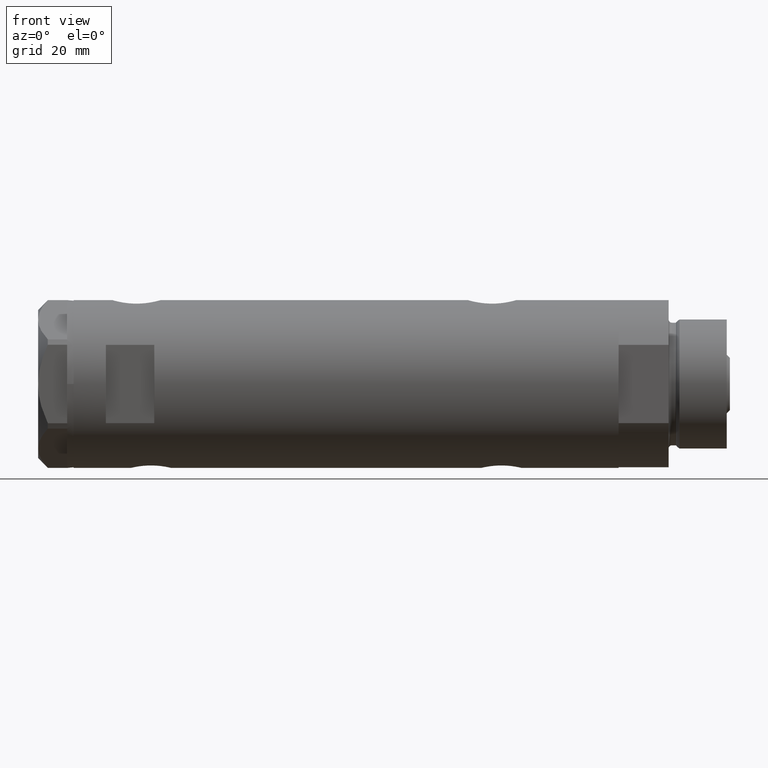
[diagram: clean part render]
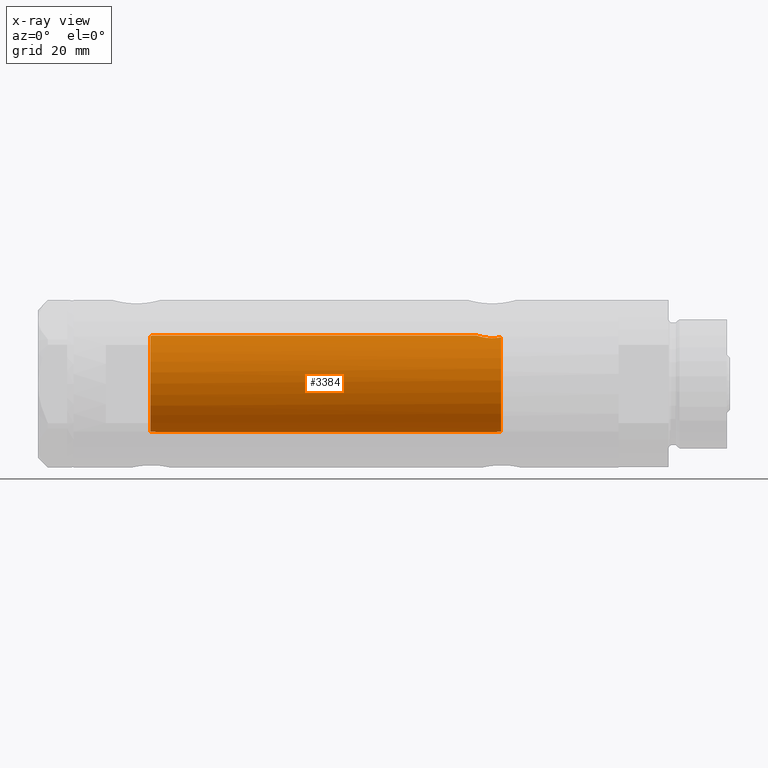
[diagram: x-ray — body ghosted, one internal face saturated and labeled with its STEP entity id]
A machine part, front view, then the same camera in x-ray: the body is ghosted and one INTERNAL B-rep face — a face not visible from any outside direction — is saturated and labeled: STEP entity #3384.
In plain terms, the highlighted cylindrical surface (partial cylindrical patch) has radius 15 mm, axis along (1, 0, -0).
Its self-contained STEP definition (entity closure, byte-faithful):
#14 = CARTESIAN_POINT ( 'NONE',  ( 14.81710879718118434, -2.343063746046468943, -40.98067662538952760 ) ) ;
#45 = CARTESIAN_POINT ( 'NONE',  ( 14.18786347641749579, -4.868757996482115047, -45.13322300400291454 ) ) ;
#94 = CARTESIAN_POINT ( 'NONE',  ( 14.72015646623406582, -2.909233045280603225, -41.32572079632732454 ) ) ;
#117 = DIRECTION ( 'NONE',  ( 1.000000000000000000, 0.000000000000000000, 0.000000000000000000 ) ) ;
#195 = CARTESIAN_POINT ( 'NONE',  ( -14.79268570220017764, -2.485279885960844037, -47.73227165314102649 ) ) ;
#201 = VECTOR ( 'NONE', #3880, 1000.000000000000000 ) ;
#236 = VERTEX_POINT ( 'NONE', #1813 ) ;
#293 = CARTESIAN_POINT ( 'NONE',  ( 15.00000000000000000, 0.000000000000000000, 60.08499999999999375 ) ) ;
#318 = CARTESIAN_POINT ( 'NONE',  ( -14.83314878996174357, -2.232849285003169371, 59.31256080311606382 ) ) ;
#410 = VERTEX_POINT ( 'NONE', #635 ) ;
#430 = CARTESIAN_POINT ( 'NONE',  ( 14.97537530859972321, -0.8874117095427787039, -40.46137464055827593 ) ) ;
#484 = CARTESIAN_POINT ( 'NONE',  ( 14.20819413761015859, -4.809312895991456394, -46.01713251522166104 ) ) ;
#487 = CYLINDRICAL_SURFACE ( 'NONE', #4059, 15.00000000000000000 ) ;
#505 = CARTESIAN_POINT ( 'NONE',  ( 14.99508877558422704, -0.4434836953032598172, -40.40007684727662962 ) ) ;
#557 = DIRECTION ( 'NONE',  ( -1.000000000000000000, 0.000000000000000000, 0.000000000000000000 ) ) ;
#565 = CARTESIAN_POINT ( 'NONE',  ( 15.00000000000000000, 1.836970198721029589E-15, 84.45000000000001705 ) ) ;
#584 = B_SPLINE_CURVE_WITH_KNOTS ( 'NONE', 3,
 ( #2065, #3292, #1265, #4823, #1664, #1221, #2009, #484, #3614, #4895, #45, #3267, #1715, #900, #4113, #4870, #826, #1685, #2899, #4476, #94, #14, #2430, #2086, #2824, #2501, #430, #505, #3321, #880 ),
 .UNSPECIFIED., .F., .F.,
 ( 4, 2, 2, 2, 2, 2, 2, 2, 2, 2, 2, 2, 2, 2, 4 ),
 ( 0.004672505804584288491, 0.005337629501999293681, 0.006002753199414298003, 0.006667876896829303193, 0.007333000594244307516, 0.007998124291659313573, 0.008663247989074317895, 0.009328371686489322218, 0.009993495383904326540, 0.01132374277873435427, 0.01265399017356438199, 0.01331911387097939499, 0.01398423756839440972, 0.01464936126580942445, 0.01531448496322443745 ),
 .UNSPECIFIED. ) ;
#627 = CARTESIAN_POINT ( 'NONE',  ( 14.85289483991917336, -2.102865829523694607, 60.55860377881606382 ) ) ;
#635 = CARTESIAN_POINT ( 'NONE',  ( 14.82638779339053769, -2.275571356824481750, 60.64999999999999858 ) ) ;
#672 = LINE ( 'NONE', #2276, #201 ) ;
#674 = CARTESIAN_POINT ( 'NONE',  ( -14.79053751558745589, -2.497999199359361544, -48.04999999999999716 ) ) ;
#686 = ORIENTED_EDGE ( 'NONE', *, *, #3949, .F. ) ;
#726 = VERTEX_POINT ( 'NONE', #4460 ) ;
#750 = ORIENTED_EDGE ( 'NONE', *, *, #3779, .T. ) ;
#826 = CARTESIAN_POINT ( 'NONE',  ( 14.33594561531103828, -4.414979644548148840, -43.19453393419242815 ) ) ;
#847 = CARTESIAN_POINT ( 'NONE',  ( -14.98541608527169977, -0.6823644196029160502, 58.03879464417551048 ) ) ;
#880 = CARTESIAN_POINT ( 'NONE',  ( 15.00000000000000000, 5.959273468635536151E-16, -40.38499999999999091 ) ) ;
#900 = CARTESIAN_POINT ( 'NONE',  ( 14.23984499268010673, -4.714778477509579346, -44.03008258614764259 ) ) ;
#946 = CARTESIAN_POINT ( 'NONE',  ( 0.000000000000000000, 0.000000000000000000, 60.64999999999999858 ) ) ;
#990 = VERTEX_POINT ( 'NONE', #4729 ) ;
#995 = VERTEX_POINT ( 'NONE', #3013 ) ;
#1007 = CARTESIAN_POINT ( 'NONE',  ( -14.98749134158486740, -0.6320459414166014200, -45.72599747929442771 ) ) ;
#1018 = CARTESIAN_POINT ( 'NONE',  ( 14.92029983160078466, -1.555365312915176323, 60.33609703141411984 ) ) ;
#1039 = EDGE_CURVE ( 'NONE', #236, #410, #2797, .T. ) ;
#1101 = CARTESIAN_POINT ( 'NONE',  ( 15.00000000000000000, -0.3999014018875941545, 60.08499999999998664 ) ) ;
#1131 = CIRCLE ( 'NONE', #3812, 15.00000000000000000 ) ;
#1149 = EDGE_CURVE ( 'NONE', #3585, #995, #4547, .T. ) ;
#1221 = CARTESIAN_POINT ( 'NONE',  ( 14.25856516724843992, -4.658255869285516049, -46.67044016644936022 ) ) ;
#1224 = ORIENTED_EDGE ( 'NONE', *, *, #1779, .T. ) ;
#1245 = CARTESIAN_POINT ( 'NONE',  ( -14.97699254061833152, -0.8454257663520247101, 58.09097868826832212 ) ) ;
#1265 = CARTESIAN_POINT ( 'NONE',  ( 14.39424372609267699, -4.221002267729138779, -47.67893131093288162 ) ) ;
#1294 = CARTESIAN_POINT ( 'NONE',  ( -14.94313933514151493, -1.312299271472207263, 58.31526966946923807 ) ) ;
#1430 = CARTESIAN_POINT ( 'NONE',  ( -15.00000000000000000, 0.000000000000000000, -45.64999999999999858 ) ) ;
#1454 = CARTESIAN_POINT ( 'NONE',  ( -14.92627313122705779, -1.491421694539938336, -46.13730514635739155 ) ) ;
#1492 = CARTESIAN_POINT ( 'NONE',  ( -14.79723843696374708, -2.458094276708261194, 59.96231574989081281 ) ) ;
#1497 = CARTESIAN_POINT ( 'NONE',  ( 14.93900636919599911, -1.364886281976677163, 60.27622504971313333 ) ) ;
#1664 = CARTESIAN_POINT ( 'NONE',  ( 14.30602371879161794, -4.510400617436904902, -47.08665028800272268 ) ) ;
#1685 = CARTESIAN_POINT ( 'NONE',  ( 14.42796883436189859, -4.108435602805832865, -42.60726922759030089 ) ) ;
#1715 = CARTESIAN_POINT ( 'NONE',  ( 14.20926245015526135, -4.806160851464706063, -44.46377327795615031 ) ) ;
#1737 = DIRECTION ( 'NONE',  ( 0.000000000000000000, 0.000000000000000000, -1.000000000000000000 ) ) ;
#1752 = ORIENTED_EDGE ( 'NONE', *, *, #1149, .F. ) ;
#1753 = EDGE_LOOP ( 'NONE', ( #3735, #5048, #2954, #750, #1752, #686, #3733, #1224 ) ) ;
#1760 = CARTESIAN_POINT ( 'NONE',  ( -14.88625129008226722, -1.847379311388058998, -46.45812992433159394 ) ) ;
#1779 = EDGE_CURVE ( 'NONE', #726, #410, #4740, .T. ) ;
#1789 = DIRECTION ( 'NONE',  ( 0.000000000000000000, 0.000000000000000000, 1.000000000000000000 ) ) ;
#1794 = CARTESIAN_POINT ( 'NONE',  ( -14.87290636797879984, -1.950714596786577326, -46.57831246618854237 ) ) ;
#1813 = CARTESIAN_POINT ( 'NONE',  ( 15.00000000000000000, 0.000000000000000000, 60.08499999999999375 ) ) ;
#1891 = CARTESIAN_POINT ( 'NONE',  ( 14.98404828787190546, -0.7909490205761878778, 60.13356230794190083 ) ) ;
#2009 = CARTESIAN_POINT ( 'NONE',  ( 14.23846660849503820, -4.718934182878723682, -46.45401121469809169 ) ) ;
#2065 = CARTESIAN_POINT ( 'NONE',  ( 14.46277203719950677, -3.978470183374504199, -48.04999999999999716 ) ) ;
#2086 = CARTESIAN_POINT ( 'NONE',  ( 14.90017778876745247, -1.739641523727902594, -40.70130925695126933 ) ) ;
#2108 = CARTESIAN_POINT ( 'NONE',  ( -14.95581892566389470, -1.161262481484112152, 58.22937042154405418 ) ) ;
#2160 = CARTESIAN_POINT ( 'NONE',  ( 0.000000000000000000, 0.000000000000000000, -48.04999999999999716 ) ) ;
#2184 = CARTESIAN_POINT ( 'NONE',  ( -14.99740058099026108, -0.3199290537848252236, -45.66546469274585718 ) ) ;
#2219 = CARTESIAN_POINT ( 'NONE',  ( -14.95054302956255121, -1.224431043437663513, -45.96458290830101845 ) ) ;
#2226 = LINE ( 'NONE', #565, #4399 ) ;
#2276 = CARTESIAN_POINT ( 'NONE',  ( -15.00000000000000000, 0.000000000000000000, 84.45000000000001705 ) ) ;
#2357 = CARTESIAN_POINT ( 'NONE',  ( -14.85859683553260346, -2.056701007386132485, 59.01843972450895137 ) ) ;
#2407 = CARTESIAN_POINT ( 'NONE',  ( -15.00000000000000000, 3.061618115923464028E-16, 57.94999999999999574 ) ) ;
#2430 = CARTESIAN_POINT ( 'NONE',  ( 14.84733308118440043, -2.144376633039216884, -40.87751912952713695 ) ) ;
#2457 = CARTESIAN_POINT ( 'NONE',  ( 14.46277203719950677, -3.978470183374504199, -48.04999999999999716 ) ) ;
#2501 = CARTESIAN_POINT ( 'NONE',  ( 14.96064712090283777, -1.106639041422191827, -40.50738179736369204 ) ) ;
#2552 = EDGE_CURVE ( 'NONE', #236, #990, #2226, .T. ) ;
#2569 = CARTESIAN_POINT ( 'NONE',  ( -15.00000000000000000, 3.061618115923464028E-16, 57.94999999999999574 ) ) ;
#2643 = CARTESIAN_POINT ( 'NONE',  ( -15.00000000000000000, 0.000000000000000000, -45.64999999999999858 ) ) ;
#2699 = CARTESIAN_POINT ( 'NONE',  ( -14.98007298506453111, -0.7870736506658194687, -45.77174868555714227 ) ) ;
#2755 = EDGE_CURVE ( 'NONE', #726, #4175, #3227, .T. ) ;
#2797 = B_SPLINE_CURVE_WITH_KNOTS ( 'NONE', 3,
 ( #293, #1101, #1891, #1497, #1018, #3102, #627, #4702 ),
 .UNSPECIFIED., .F., .F.,
 ( 4, 2, 2, 4 ),
 ( 0.000000000000000000, 0.001182100180564266178, 0.001773150270846399375, 0.002364200361128532355 ),
 .UNSPECIFIED. ) ;
#2815 = EDGE_CURVE ( 'NONE', #3106, #990, #584, .T. ) ;
#2824 = CARTESIAN_POINT ( 'NONE',  ( 14.92307637240704032, -1.532123959568890914, -40.62726557582076481 ) ) ;
#2828 = FACE_OUTER_BOUND ( 'NONE', #1753, .T. ) ;
#2848 = CARTESIAN_POINT ( 'NONE',  ( -14.99695275358353719, -0.3460123648701060040, 57.96810396824248102 ) ) ;
#2899 = CARTESIAN_POINT ( 'NONE',  ( 14.49994286062941562, -3.853373987417222590, -42.24743896782910468 ) ) ;
#2954 = ORIENTED_EDGE ( 'NONE', *, *, #2815, .F. ) ;
#2981 = CARTESIAN_POINT ( 'NONE',  ( -14.96154495298568854, -1.083625483837070469, -45.89138979525008466 ) ) ;
#3013 = CARTESIAN_POINT ( 'NONE',  ( -14.79053751558745589, -2.497999199359361544, -48.04999999999999716 ) ) ;
#3066 = CARTESIAN_POINT ( 'NONE',  ( -14.84760220014584853, -2.134792770974418552, -46.83921818480344967 ) ) ;
#3098 = CARTESIAN_POINT ( 'NONE',  ( -14.82167156606024427, -2.306788152106016287, 59.47115114601640329 ) ) ;
#3102 = CARTESIAN_POINT ( 'NONE',  ( 14.87720562886504538, -1.924385875533401125, 60.47741675737690770 ) ) ;
#3106 = VERTEX_POINT ( 'NONE', #2457 ) ;
#3227 = B_SPLINE_CURVE_WITH_KNOTS ( 'NONE', 3,
 ( #5179, #4308, #5099, #1492, #3519, #3098, #318, #2357, #3570, #3246, #4848, #1294, #2108, #1245, #847, #2848, #4505, #2407 ),
 .UNSPECIFIED., .F., .F.,
 ( 4, 2, 2, 2, 2, 2, 2, 2, 4 ),
 ( 0.003715686714229634365, 0.004229951999599993080, 0.004744217284970351362, 0.005258482570340709643, 0.005772747855711067924, 0.006287013141081427073, 0.006801278426451785354, 0.007315543711822143635, 0.007829808997192502784 ),
 .UNSPECIFIED. ) ;
#3246 = CARTESIAN_POINT ( 'NONE',  ( -14.90147761301467533, -1.720422196468684106, 58.62794212931562043 ) ) ;
#3267 = CARTESIAN_POINT ( 'NONE',  ( 14.19858338301462908, -4.837406781463696070, -44.68614104090496397 ) ) ;
#3292 = CARTESIAN_POINT ( 'NONE',  ( 14.42775250319759728, -4.105775281508733165, -47.86911445102904850 ) ) ;
#3321 = CARTESIAN_POINT ( 'NONE',  ( 15.00000000000000355, -0.2216692655473436746, -40.38499999999999091 ) ) ;
#3384 = ADVANCED_FACE ( 'NONE', ( #2828 ), #487, .F. ) ;
#3519 = CARTESIAN_POINT ( 'NONE',  ( -14.80379558280398733, -2.418854260473059625, 59.79535450491657400 ) ) ;
#3570 = CARTESIAN_POINT ( 'NONE',  ( -14.87260732106556560, -1.954338522023926217, 58.88146298750766761 ) ) ;
#3585 = VERTEX_POINT ( 'NONE', #1430 ) ;
#3614 = CARTESIAN_POINT ( 'NONE',  ( 14.19797987272029438, -4.839174951492910104, -45.79741451501411831 ) ) ;
#3733 = ORIENTED_EDGE ( 'NONE', *, *, #2755, .F. ) ;
#3735 = ORIENTED_EDGE ( 'NONE', *, *, #1039, .F. ) ;
#3773 = DIRECTION ( 'NONE',  ( -0.000000000000000000, -0.000000000000000000, -1.000000000000000000 ) ) ;
#3779 = EDGE_CURVE ( 'NONE', #3106, #995, #1131, .T. ) ;
#3794 = CARTESIAN_POINT ( 'NONE',  ( -14.83575030094399949, -2.214690538106012685, -46.97938890130202338 ) ) ;
#3812 = AXIS2_PLACEMENT_3D ( 'NONE', #2160, #1737, #557 ) ;
#3880 = DIRECTION ( 'NONE',  ( -0.000000000000000000, -0.000000000000000000, -1.000000000000000000 ) ) ;
#3882 = CARTESIAN_POINT ( 'NONE',  ( -15.00000000000000355, -0.1613061104920440469, -45.65000000000000568 ) ) ;
#3906 = AXIS2_PLACEMENT_3D ( 'NONE', #946, #1789, #117 ) ;
#3949 = EDGE_CURVE ( 'NONE', #4175, #3585, #672, .T. ) ;
#4059 = AXIS2_PLACEMENT_3D ( 'NONE', #4434, #4381, #4851 ) ;
#4113 = CARTESIAN_POINT ( 'NONE',  ( 14.25977760983849052, -4.654557688538888627, -43.81736805897653397 ) ) ;
#4175 = VERTEX_POINT ( 'NONE', #2569 ) ;
#4308 = CARTESIAN_POINT ( 'NONE',  ( -14.78924132900106514, -2.505700361584525915, 60.47913437470931797 ) ) ;
#4381 = DIRECTION ( 'NONE',  ( -0.000000000000000000, -0.000000000000000000, -1.000000000000000000 ) ) ;
#4399 = VECTOR ( 'NONE', #3773, 1000.000000000000000 ) ;
#4434 = CARTESIAN_POINT ( 'NONE',  ( 0.000000000000000000, 0.000000000000000000, 84.45000000000001705 ) ) ;
#4460 = CARTESIAN_POINT ( 'NONE',  ( -14.79155164274525980, -2.491987158875425212, 60.64999999999999858 ) ) ;
#4476 = CARTESIAN_POINT ( 'NONE',  ( 14.64727859494137618, -3.248701865452408910, -41.60174013696654072 ) ) ;
#4505 = CARTESIAN_POINT ( 'NONE',  ( -14.99999999999999822, -0.1716226368084270981, 57.95000000000000995 ) ) ;
#4547 = B_SPLINE_CURVE_WITH_KNOTS ( 'NONE', 3,
 ( #2643, #3882, #2184, #1007, #2699, #2981, #2219, #1454, #4973, #1760, #1794, #3066, #3794, #4669, #195, #674 ),
 .UNSPECIFIED., .F., .F.,
 ( 4, 2, 2, 2, 2, 2, 2, 4 ),
 ( 0.000000000000000000, 0.0004769863284873110182, 0.0009539726569746220363, 0.001430958985461933163, 0.001907945313949244073, 0.002384931642436555199, 0.002861917970923867193, 0.003815890627898489880 ),
 .UNSPECIFIED. ) ;
#4669 = CARTESIAN_POINT ( 'NONE',  ( -14.80570803900864263, -2.410056876876582432, -47.41354637206097067 ) ) ;
#4702 = CARTESIAN_POINT ( 'NONE',  ( 14.82638779339053769, -2.275571356824481750, 60.64999999999999858 ) ) ;
#4729 = CARTESIAN_POINT ( 'NONE',  ( 15.00000000000000000, 5.959273468635536151E-16, -40.38499999999999091 ) ) ;
#4740 = CIRCLE ( 'NONE', #3906, 15.00000000000000000 ) ;
#4823 = CARTESIAN_POINT ( 'NONE',  ( 14.33349657381506503, -4.422893686125040524, -47.28827841538883092 ) ) ;
#4848 = CARTESIAN_POINT ( 'NONE',  ( -14.91608554980931878, -1.590576762727826221, 58.51369720243329198 ) ) ;
#4851 = DIRECTION ( 'NONE',  ( -1.000000000000000000, 0.000000000000000000, 0.000000000000000000 ) ) ;
#4870 = CARTESIAN_POINT ( 'NONE',  ( 14.30772250772359833, -4.505024017690381299, -43.40010806953217326 ) ) ;
#4895 = CARTESIAN_POINT ( 'NONE',  ( 14.18781489734107737, -4.868896704194243696, -45.35545969036060399 ) ) ;
#4973 = CARTESIAN_POINT ( 'NONE',  ( -14.91288509639097981, -1.618377549727003650, -46.23790984008952165 ) ) ;
#5048 = ORIENTED_EDGE ( 'NONE', *, *, #2552, .T. ) ;
#5099 = CARTESIAN_POINT ( 'NONE',  ( -14.78989771875219894, -2.501882951377200737, 60.30631597653685105 ) ) ;
#5179 = CARTESIAN_POINT ( 'NONE',  ( -14.79155164274525980, -2.491987158875425212, 60.64999999999999858 ) ) ;